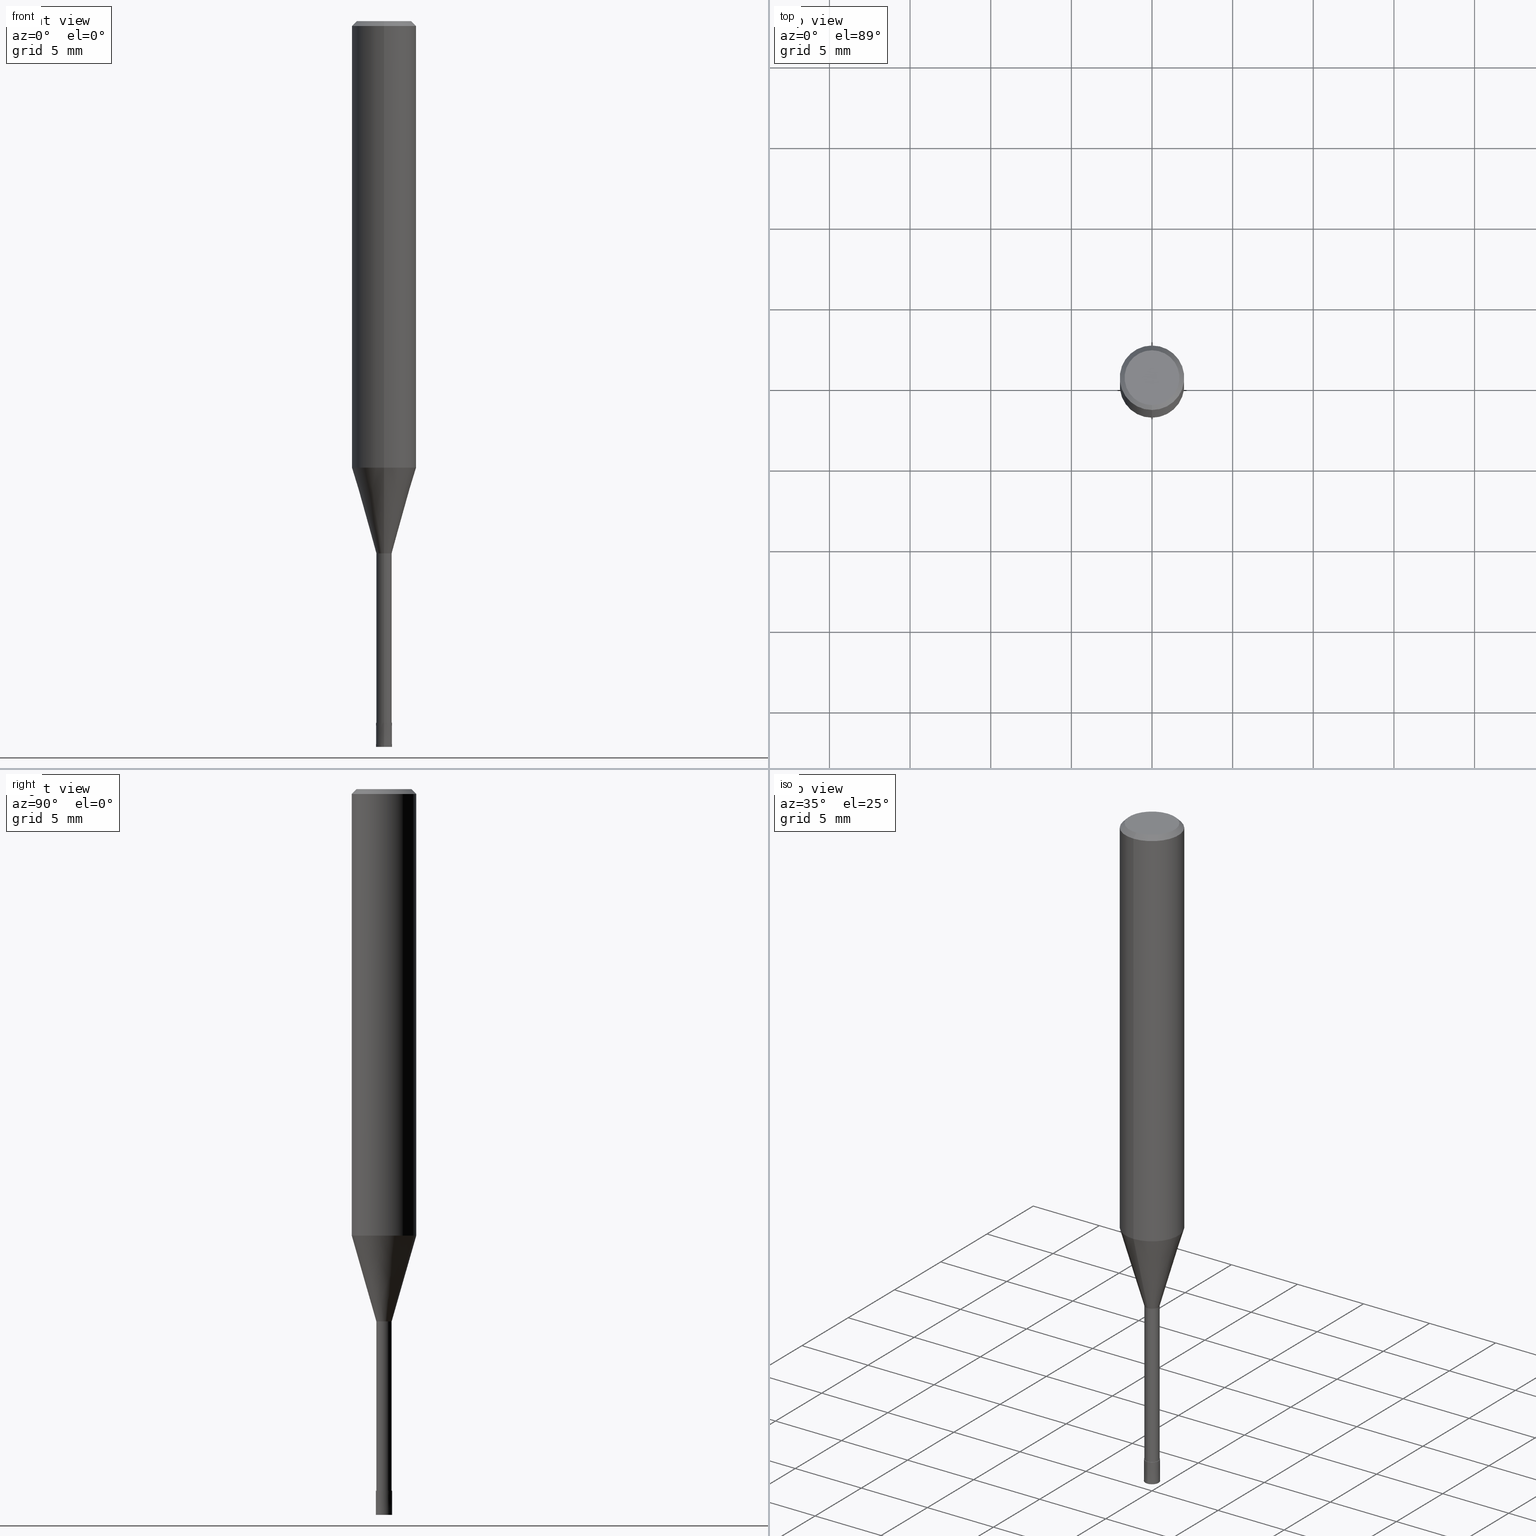
[diagram: canonical four-view strip — front | top / right | iso, engineering-drawing reading convention]
A machine part, canonical four-view strip (front | top / right | iso — engineering-drawing reading convention). The complete STEP part file that produces these views, byte-faithful:
ISO-10303-21;
HEADER;
FILE_DESCRIPTION(('no description'),'unknown implementation level');
FILE_NAME('HLS2010-120-Huellk.stp','  ',('CIMSOURCE GmbH'),('CADClick - KiM GmbH - www.kimweb.de'),'unknown preprocess','ACIS','unknown authorization');
FILE_SCHEMA(('automotive_design'));
ENDSEC;
DATA;
#1=MECHANICAL_DESIGN_GEOMETRIC_PRESENTATION_REPRESENTATION(' ',(#14,#15,#16,#17,#18,#19,#20,#21,#22,#23,#24,#25,#26,#27,#28,#29,#30,#31,#32,#33,#34,#35,#36,#37,#38,#39,#40,#41,#42,#43,#44,#45,#46,#47,#48,#49,#50,#51,#52,#53,#54,#55,#56,#57,#58,#59,#60,#61,#62,#63,#64,#65,#66,#67,#68,#69,#70,#71,#72),#10);
#2=PRODUCT_DEFINITION_CONTEXT('',#73,'design');
#3=APPLICATION_PROTOCOL_DEFINITION('INTERNATIONAL STANDARD','automotive_design',1994,#73);
#4=PRODUCT_CATEGORY_RELATIONSHIP('NONE','NONE',#74,#75);
#5=SHAPE_DEFINITION_REPRESENTATION(#76,#77);
#6=PRODUCT_DEFINITION_CONTEXT('',#78,'design');
#7=APPLICATION_PROTOCOL_DEFINITION('INTERNATIONAL STANDARD','automotive_design',1994,#78);
#8=PRODUCT_CATEGORY_RELATIONSHIP('NONE','NONE',#79,#80);
#9=SHAPE_DEFINITION_REPRESENTATION(#81,#82);
#10= (GEOMETRIC_REPRESENTATION_CONTEXT(3)GLOBAL_UNCERTAINTY_ASSIGNED_CONTEXT((#85))GLOBAL_UNIT_ASSIGNED_CONTEXT((#87,#88,#89))REPRESENTATION_CONTEXT('NONE','WORKSPACE'));
#14=STYLED_ITEM('',(#91),#92);
#15=STYLED_ITEM('',(#93),#94);
#16=STYLED_ITEM('',(#95),#96);
#17=STYLED_ITEM('',(#97),#98);
#18=STYLED_ITEM('',(#99),#100);
#19=STYLED_ITEM('',(#101),#102);
#20=STYLED_ITEM('',(#103),#104);
#21=STYLED_ITEM('',(#105),#106);
#22=STYLED_ITEM('',(#107),#108);
#23=STYLED_ITEM('',(#109),#110);
#24=STYLED_ITEM('',(#111),#112);
#25=STYLED_ITEM('',(#113),#114);
#26=STYLED_ITEM('',(#115),#116);
#27=STYLED_ITEM('',(#117),#118);
#28=STYLED_ITEM('',(#119),#120);
#29=STYLED_ITEM('',(#121),#122);
#30=STYLED_ITEM('',(#123),#124);
#31=STYLED_ITEM('',(#125),#126);
#32=STYLED_ITEM('',(#127),#128);
#33=STYLED_ITEM('',(#129),#130);
#34=STYLED_ITEM('',(#131),#132);
#35=STYLED_ITEM('',(#133),#134);
#36=STYLED_ITEM('',(#135),#136);
#37=STYLED_ITEM('',(#137),#138);
#38=STYLED_ITEM('',(#139),#140);
#39=STYLED_ITEM('',(#141),#142);
#40=STYLED_ITEM('',(#143),#144);
#41=STYLED_ITEM('',(#145),#146);
#42=STYLED_ITEM('',(#147),#148);
#43=STYLED_ITEM('',(#149),#150);
#44=STYLED_ITEM('',(#151),#152);
#45=STYLED_ITEM('',(#153),#154);
#46=STYLED_ITEM('',(#155),#156);
#47=STYLED_ITEM('',(#157),#158);
#48=STYLED_ITEM('',(#159),#160);
#49=STYLED_ITEM('',(#161),#162);
#50=STYLED_ITEM('',(#163),#164);
#51=STYLED_ITEM('',(#165),#166);
#52=STYLED_ITEM('',(#167),#168);
#53=STYLED_ITEM('',(#169),#170);
#54=STYLED_ITEM('',(#171),#172);
#55=STYLED_ITEM('',(#173),#174);
#56=STYLED_ITEM('',(#175),#176);
#57=STYLED_ITEM('',(#177),#178);
#58=STYLED_ITEM('',(#179),#180);
#59=STYLED_ITEM('',(#181),#182);
#60=STYLED_ITEM('',(#183),#184);
#61=STYLED_ITEM('',(#185),#186);
#62=STYLED_ITEM('',(#187),#188);
#63=STYLED_ITEM('',(#189),#190);
#64=STYLED_ITEM('',(#191),#192);
#65=STYLED_ITEM('',(#193),#194);
#66=STYLED_ITEM('',(#195),#196);
#67=STYLED_ITEM('',(#197),#198);
#68=STYLED_ITEM('',(#199),#200);
#69=STYLED_ITEM('',(#201),#202);
#70=STYLED_ITEM('',(#203),#204);
#71=STYLED_ITEM('',(#205),#206);
#72=STYLED_ITEM('',(#207),#208);
#73=APPLICATION_CONTEXT(' ');
#74=PRODUCT_CATEGORY('part','NONE');
#75=PRODUCT_RELATED_PRODUCT_CATEGORY('detail',' ',(#209));
#76=PRODUCT_DEFINITION_SHAPE('NONE','NONE',#210);
#77=ADVANCED_BREP_SHAPE_REPRESENTATION('1',(#94,#211),#10);
#78=APPLICATION_CONTEXT(' ');
#79=PRODUCT_CATEGORY('part','NONE');
#80=PRODUCT_RELATED_PRODUCT_CATEGORY('detail',' ',(#212));
#81=PRODUCT_DEFINITION_SHAPE('NONE','NONE',#213);
#82=ADVANCED_BREP_SHAPE_REPRESENTATION('2',(#102,#214),#10);
#85=UNCERTAINTY_MEASURE_WITH_UNIT(LENGTH_MEASURE(1.0E-006),#87,'','');
#87= (CONVERSION_BASED_UNIT('MILLIMETRE',#217)LENGTH_UNIT()NAMED_UNIT(#220));
#88= (NAMED_UNIT(#222)PLANE_ANGLE_UNIT()SI_UNIT($,.RADIAN.));
#89= (NAMED_UNIT(#222)SOLID_ANGLE_UNIT()SI_UNIT($,.STERADIAN.));
#91=PRESENTATION_STYLE_ASSIGNMENT((#228));
#92=EDGE_CURVE('',#150,#158,#229,.T.);
#93=PRESENTATION_STYLE_ASSIGNMENT((#230));
#94=MANIFOLD_SOLID_BREP('1',#231);
#95=PRESENTATION_STYLE_ASSIGNMENT((#232));
#96=ADVANCED_FACE('',(#233),#234,.T.);
#97=PRESENTATION_STYLE_ASSIGNMENT((#235));
#98=ADVANCED_FACE('',(#236),#237,.T.);
#99=PRESENTATION_STYLE_ASSIGNMENT((#238));
#100=EDGE_CURVE('',#186,#108,#239,.T.);
#101=PRESENTATION_STYLE_ASSIGNMENT((#240));
#102=MANIFOLD_SOLID_BREP('2',#241);
#103=PRESENTATION_STYLE_ASSIGNMENT((#242));
#104=EDGE_CURVE('',#174,#120,#243,.T.);
#105=PRESENTATION_STYLE_ASSIGNMENT((#244));
#106=ADVANCED_FACE('',(#245),#246,.T.);
#107=PRESENTATION_STYLE_ASSIGNMENT((#247));
#108=VERTEX_POINT('',#248);
#109=PRESENTATION_STYLE_ASSIGNMENT((#249));
#110=VERTEX_POINT('',#250);
#111=PRESENTATION_STYLE_ASSIGNMENT((#251));
#112=ADVANCED_FACE('',(#252),#253,.T.);
#113=PRESENTATION_STYLE_ASSIGNMENT((#254));
#114=EDGE_CURVE('',#150,#188,#255,.T.);
#115=PRESENTATION_STYLE_ASSIGNMENT((#256));
#116=EDGE_CURVE('',#202,#182,#257,.T.);
#117=PRESENTATION_STYLE_ASSIGNMENT((#258));
#118=ADVANCED_FACE('',(#259),#260,.T.);
#119=PRESENTATION_STYLE_ASSIGNMENT((#261));
#120=VERTEX_POINT('',#262);
#121=PRESENTATION_STYLE_ASSIGNMENT((#263));
#122=VERTEX_POINT('',#264);
#123=PRESENTATION_STYLE_ASSIGNMENT((#265));
#124=VERTEX_POINT('',#266);
#125=PRESENTATION_STYLE_ASSIGNMENT((#267));
#126=EDGE_CURVE('',#110,#124,#268,.T.);
#127=PRESENTATION_STYLE_ASSIGNMENT((#269));
#128=ADVANCED_FACE('',(#270),#271,.T.);
#129=PRESENTATION_STYLE_ASSIGNMENT((#272));
#130=VERTEX_POINT('',#273);
#131=PRESENTATION_STYLE_ASSIGNMENT((#274));
#132=EDGE_CURVE('',#130,#124,#275,.T.);
#133=PRESENTATION_STYLE_ASSIGNMENT((#276));
#134=ADVANCED_FACE('',(#277),#278,.T.);
#135=PRESENTATION_STYLE_ASSIGNMENT((#279));
#136=ADVANCED_FACE('',(#280),#281,.T.);
#137=PRESENTATION_STYLE_ASSIGNMENT((#282));
#138=ADVANCED_FACE('',(#283),#284,.T.);
#139=PRESENTATION_STYLE_ASSIGNMENT((#285));
#140=ADVANCED_FACE('',(#286),#287,.T.);
#141=PRESENTATION_STYLE_ASSIGNMENT((#288));
#142=ADVANCED_FACE('',(#289),#290,.T.);
#143=PRESENTATION_STYLE_ASSIGNMENT((#291));
#144=VERTEX_POINT('',#292);
#145=PRESENTATION_STYLE_ASSIGNMENT((#293));
#146=VERTEX_POINT('',#294);
#147=PRESENTATION_STYLE_ASSIGNMENT((#295));
#148=EDGE_CURVE('',#146,#122,#296,.T.);
#149=PRESENTATION_STYLE_ASSIGNMENT((#297));
#150=VERTEX_POINT('',#298);
#151=PRESENTATION_STYLE_ASSIGNMENT((#299));
#152=EDGE_CURVE('',#146,#198,#300,.T.);
#153=PRESENTATION_STYLE_ASSIGNMENT((#301));
#154=EDGE_CURVE('',#110,#144,#302,.T.);
#155=PRESENTATION_STYLE_ASSIGNMENT((#303));
#156=EDGE_CURVE('',#188,#122,#304,.T.);
#157=PRESENTATION_STYLE_ASSIGNMENT((#305));
#158=VERTEX_POINT('',#306);
#159=PRESENTATION_STYLE_ASSIGNMENT((#307));
#160=EDGE_CURVE('',#144,#130,#308,.T.);
#161=PRESENTATION_STYLE_ASSIGNMENT((#309));
#162=EDGE_CURVE('',#198,#146,#310,.T.);
#163=PRESENTATION_STYLE_ASSIGNMENT((#311));
#164=ADVANCED_FACE('',(#312),#313,.T.);
#165=PRESENTATION_STYLE_ASSIGNMENT((#314));
#166=EDGE_CURVE('',#182,#202,#315,.T.);
#167=PRESENTATION_STYLE_ASSIGNMENT((#316));
#168=EDGE_CURVE('',#108,#120,#317,.T.);
#169=PRESENTATION_STYLE_ASSIGNMENT((#318));
#170=ADVANCED_FACE('',(#319,#320),#321,.T.);
#171=PRESENTATION_STYLE_ASSIGNMENT((#322));
#172=EDGE_CURVE('',#124,#110,#323,.T.);
#173=PRESENTATION_STYLE_ASSIGNMENT((#324));
#174=VERTEX_POINT('',#325);
#175=PRESENTATION_STYLE_ASSIGNMENT((#326));
#176=ADVANCED_FACE('',(#327),#328,.T.);
#177=PRESENTATION_STYLE_ASSIGNMENT((#329));
#178=ADVANCED_FACE('',(#330),#331,.T.);
#179=PRESENTATION_STYLE_ASSIGNMENT((#332));
#180=EDGE_CURVE('',#122,#188,#333,.T.);
#181=PRESENTATION_STYLE_ASSIGNMENT((#334));
#182=VERTEX_POINT('',#335);
#183=PRESENTATION_STYLE_ASSIGNMENT((#336));
#184=EDGE_CURVE('',#130,#144,#337,.T.);
#185=PRESENTATION_STYLE_ASSIGNMENT((#338));
#186=VERTEX_POINT('',#339);
#187=PRESENTATION_STYLE_ASSIGNMENT((#340));
#188=VERTEX_POINT('',#341);
#189=PRESENTATION_STYLE_ASSIGNMENT((#342));
#190=EDGE_CURVE('',#188,#198,#343,.T.);
#191=PRESENTATION_STYLE_ASSIGNMENT((#344));
#192=EDGE_CURVE('',#108,#186,#345,.T.);
#193=PRESENTATION_STYLE_ASSIGNMENT((#346));
#194=EDGE_CURVE('',#120,#174,#347,.T.);
#195=PRESENTATION_STYLE_ASSIGNMENT((#348));
#196=EDGE_CURVE('',#186,#182,#349,.T.);
#197=PRESENTATION_STYLE_ASSIGNMENT((#350));
#198=VERTEX_POINT('',#351);
#199=PRESENTATION_STYLE_ASSIGNMENT((#352));
#200=EDGE_CURVE('',#174,#186,#353,.T.);
#201=PRESENTATION_STYLE_ASSIGNMENT((#354));
#202=VERTEX_POINT('',#355);
#203=PRESENTATION_STYLE_ASSIGNMENT((#356));
#204=EDGE_CURVE('',#122,#158,#357,.T.);
#205=PRESENTATION_STYLE_ASSIGNMENT((#358));
#206=EDGE_CURVE('',#158,#150,#359,.T.);
#207=PRESENTATION_STYLE_ASSIGNMENT((#360));
#208=EDGE_CURVE('',#202,#108,#361,.T.);
#209=PRODUCT('1','1','PART-1-DESC',(#362));
#210=PRODUCT_DEFINITION('NONE','NONE',#363,#2);
#211=AXIS2_PLACEMENT_3D('',#364,#365,#366);
#212=PRODUCT('2','2','PART-2-DESC',(#367));
#213=PRODUCT_DEFINITION('NONE','NONE',#368,#6);
#214=AXIS2_PLACEMENT_3D('',#369,#370,#371);
#217=LENGTH_MEASURE_WITH_UNIT(LENGTH_MEASURE(1.0),#372);
#220=DIMENSIONAL_EXPONENTS(1.0,0.0,0.0,0.0,0.0,0.0,0.0);
#222=DIMENSIONAL_EXPONENTS(0.0,0.0,0.0,0.0,0.0,0.0,0.0);
#228=CURVE_STYLE('',#373,POSITIVE_LENGTH_MEASURE(1.0E-006),#374);
#229=CIRCLE('',#375,1.7);
#230=SURFACE_STYLE_USAGE(.BOTH.,#376);
#231=CLOSED_SHELL('',(#178,#134,#136,#138,#170,#176,#164,#142,#118,#140,#106));
#232=SURFACE_STYLE_USAGE(.BOTH.,#377);
#233=FACE_OUTER_BOUND('',#378,.T.);
#234=CONICAL_SURFACE('',#379,0.49995,6.66666665678939E-005);
#235=SURFACE_STYLE_USAGE(.BOTH.,#380);
#236=FACE_OUTER_BOUND('',#381,.T.);
#237=PLANE('',#382);
#238=CURVE_STYLE('',#383,POSITIVE_LENGTH_MEASURE(1.0E-006),#384);
#239=CIRCLE('',#385,0.47495);
#240=SURFACE_STYLE_USAGE(.BOTH.,#386);
#241=CLOSED_SHELL('',(#96,#98,#112,#128));
#242=CURVE_STYLE('',#387,POSITIVE_LENGTH_MEASURE(1.0E-006),#388);
#243=CIRCLE('',#389,1.99995);
#244=SURFACE_STYLE_USAGE(.BOTH.,#390);
#245=FACE_OUTER_BOUND('',#391,.T.);
#246=PLANE('',#392);
#247=POINT_STYLE(' ',#393,POSITIVE_LENGTH_MEASURE(1.0E-006),#394);
#248=CARTESIAN_POINT('',(5.81626787747938E-017,-0.47495,-33.0));
#249=POINT_STYLE(' ',#395,POSITIVE_LENGTH_MEASURE(1.0E-006),#396);
#250=CARTESIAN_POINT('',(0.0,0.4999,-43.5));
#251=SURFACE_STYLE_USAGE(.BOTH.,#397);
#252=FACE_OUTER_BOUND('',#398,.T.);
#253=CONICAL_SURFACE('',#399,0.49995,6.66666665678939E-005);
#254=CURVE_STYLE('',#400,POSITIVE_LENGTH_MEASURE(1.0E-006),#401);
#255=LINE('',#402,#403);
#256=CURVE_STYLE('',#404,POSITIVE_LENGTH_MEASURE(1.0E-006),#405);
#257=CIRCLE('',#406,0.47495);
#258=SURFACE_STYLE_USAGE(.BOTH.,#407);
#259=FACE_OUTER_BOUND('',#408,.T.);
#260=CONICAL_SURFACE('',#409,1.23745,0.279267977304115);
#261=POINT_STYLE(' ',#410,POSITIVE_LENGTH_MEASURE(1.0E-006),#411);
#262=CARTESIAN_POINT('',(2.44915147732706E-016,-1.99995,-27.682));
#263=POINT_STYLE(' ',#412,POSITIVE_LENGTH_MEASURE(1.0E-006),#413);
#264=CARTESIAN_POINT('',(2.44921270764475E-016,-2.0,-0.300000000000001));
#265=POINT_STYLE(' ',#414,POSITIVE_LENGTH_MEASURE(1.0E-006),#415);
#266=CARTESIAN_POINT('',(6.12180716275806E-017,-0.4999,-43.5));
#267=CURVE_STYLE('',#416,POSITIVE_LENGTH_MEASURE(1.0E-006),#417);
#268=CIRCLE('',#418,0.4999);
#269=SURFACE_STYLE_USAGE(.BOTH.,#419);
#270=FACE_OUTER_BOUND('',#420,.T.);
#271=PLANE('',#421);
#272=POINT_STYLE(' ',#422,POSITIVE_LENGTH_MEASURE(1.0E-006),#423);
#273=CARTESIAN_POINT('',(6.12303176911189E-017,-0.5,-45.0));
#274=CURVE_STYLE('',#424,POSITIVE_LENGTH_MEASURE(1.0E-006),#425);
#275=LINE('',#426,#427);
#276=SURFACE_STYLE_USAGE(.BOTH.,#428);
#277=FACE_OUTER_BOUND('',#429,.T.);
#278=CONICAL_SURFACE('',#430,1.23745,0.279267977304115);
#279=SURFACE_STYLE_USAGE(.BOTH.,#431);
#280=FACE_OUTER_BOUND('',#432,.T.);
#281=CYLINDRICAL_SURFACE('',#433,2.0);
#282=SURFACE_STYLE_USAGE(.BOTH.,#434);
#283=FACE_OUTER_BOUND('',#435,.T.);
#284=CONICAL_SURFACE('',#436,1.85,0.785398163397447);
#285=SURFACE_STYLE_USAGE(.BOTH.,#437);
#286=FACE_OUTER_BOUND('',#438,.T.);
#287=CYLINDRICAL_SURFACE('',#439,0.47495);
#288=SURFACE_STYLE_USAGE(.BOTH.,#440);
#289=FACE_OUTER_BOUND('',#441,.T.);
#290=CYLINDRICAL_SURFACE('',#442,2.0);
#291=POINT_STYLE(' ',#443,POSITIVE_LENGTH_MEASURE(1.0E-006),#444);
#292=CARTESIAN_POINT('',(0.0,0.5,-45.0));
#293=POINT_STYLE(' ',#445,POSITIVE_LENGTH_MEASURE(1.0E-006),#446);
#294=CARTESIAN_POINT('',(2.44921270764475E-016,-2.0,-27.682));
#295=CURVE_STYLE('',#447,POSITIVE_LENGTH_MEASURE(1.0E-006),#448);
#296=LINE('',#449,#450);
#297=POINT_STYLE(' ',#451,POSITIVE_LENGTH_MEASURE(1.0E-006),#452);
#298=CARTESIAN_POINT('',(0.0,1.7,0.0));
#299=CURVE_STYLE('',#453,POSITIVE_LENGTH_MEASURE(1.0E-006),#454);
#300=CIRCLE('',#455,2.0);
#301=CURVE_STYLE('',#456,POSITIVE_LENGTH_MEASURE(1.0E-006),#457);
#302=LINE('',#458,#459);
#303=CURVE_STYLE('',#460,POSITIVE_LENGTH_MEASURE(1.0E-006),#461);
#304=CIRCLE('',#462,2.0);
#305=POINT_STYLE(' ',#463,POSITIVE_LENGTH_MEASURE(1.0E-006),#464);
#306=CARTESIAN_POINT('',(2.08183080149804E-016,-1.7,0.0));
#307=CURVE_STYLE('',#465,POSITIVE_LENGTH_MEASURE(1.0E-006),#466);
#308=CIRCLE('',#467,0.5);
#309=CURVE_STYLE('',#468,POSITIVE_LENGTH_MEASURE(1.0E-006),#469);
#310=CIRCLE('',#470,2.0);
#311=SURFACE_STYLE_USAGE(.BOTH.,#471);
#312=FACE_OUTER_BOUND('',#472,.T.);
#313=CONICAL_SURFACE('',#473,1.85,0.785398163397447);
#314=CURVE_STYLE('',#474,POSITIVE_LENGTH_MEASURE(1.0E-006),#475);
#315=CIRCLE('',#476,0.47495);
#316=CURVE_STYLE('',#477,POSITIVE_LENGTH_MEASURE(1.0E-006),#478);
#317=LINE('',#479,#480);
#318=SURFACE_STYLE_USAGE(.BOTH.,#481);
#319=FACE_OUTER_BOUND('',#482,.T.);
#320=FACE_BOUND('',#483,.T.);
#321=PLANE('',#484);
#322=CURVE_STYLE('',#485,POSITIVE_LENGTH_MEASURE(1.0E-006),#486);
#323=CIRCLE('',#487,0.4999);
#324=POINT_STYLE(' ',#488,POSITIVE_LENGTH_MEASURE(1.0E-006),#489);
#325=CARTESIAN_POINT('',(0.0,1.99995,-27.682));
#326=SURFACE_STYLE_USAGE(.BOTH.,#490);
#327=FACE_OUTER_BOUND('',#491,.T.);
#328=PLANE('',#492);
#329=SURFACE_STYLE_USAGE(.BOTH.,#493);
#330=FACE_OUTER_BOUND('',#494,.T.);
#331=CYLINDRICAL_SURFACE('',#495,0.47495);
#332=CURVE_STYLE('',#496,POSITIVE_LENGTH_MEASURE(1.0E-006),#497);
#333=CIRCLE('',#498,2.0);
#334=POINT_STYLE(' ',#499,POSITIVE_LENGTH_MEASURE(1.0E-006),#500);
#335=CARTESIAN_POINT('',(0.0,0.47495,-43.5));
#336=CURVE_STYLE('',#501,POSITIVE_LENGTH_MEASURE(1.0E-006),#502);
#337=CIRCLE('',#503,0.5);
#338=POINT_STYLE(' ',#504,POSITIVE_LENGTH_MEASURE(1.0E-006),#505);
#339=CARTESIAN_POINT('',(0.0,0.47495,-33.0));
#340=POINT_STYLE(' ',#506,POSITIVE_LENGTH_MEASURE(1.0E-006),#507);
#341=CARTESIAN_POINT('',(0.0,2.0,-0.300000000000001));
#342=CURVE_STYLE('',#508,POSITIVE_LENGTH_MEASURE(1.0E-006),#509);
#343=LINE('',#510,#511);
#344=CURVE_STYLE('',#512,POSITIVE_LENGTH_MEASURE(1.0E-006),#513);
#345=CIRCLE('',#514,0.47495);
#346=CURVE_STYLE('',#515,POSITIVE_LENGTH_MEASURE(1.0E-006),#516);
#347=CIRCLE('',#517,1.99995);
#348=CURVE_STYLE('',#518,POSITIVE_LENGTH_MEASURE(1.0E-006),#519);
#349=LINE('',#520,#521);
#350=POINT_STYLE(' ',#522,POSITIVE_LENGTH_MEASURE(1.0E-006),#523);
#351=CARTESIAN_POINT('',(0.0,2.0,-27.682));
#352=CURVE_STYLE('',#524,POSITIVE_LENGTH_MEASURE(1.0E-006),#525);
#353=LINE('',#526,#527);
#354=POINT_STYLE(' ',#528,POSITIVE_LENGTH_MEASURE(1.0E-006),#529);
#355=CARTESIAN_POINT('',(5.81626787747938E-017,-0.47495,-43.5));
#356=CURVE_STYLE('',#530,POSITIVE_LENGTH_MEASURE(1.0E-006),#531);
#357=LINE('',#532,#533);
#358=CURVE_STYLE('',#534,POSITIVE_LENGTH_MEASURE(1.0E-006),#535);
#359=CIRCLE('',#536,1.7);
#360=CURVE_STYLE('',#537,POSITIVE_LENGTH_MEASURE(1.0E-006),#538);
#361=LINE('',#539,#540);
#362=PRODUCT_CONTEXT('',#73,'mechanical');
#363=PRODUCT_DEFINITION_FORMATION_WITH_SPECIFIED_SOURCE(' ','NONE',#209,.NOT_KNOWN.);
#364=CARTESIAN_POINT('',(0.0,0.0,0.0));
#365=DIRECTION('',(0.0,0.0,1.0));
#366=DIRECTION('',(1.0,0.0,0.0));
#367=PRODUCT_CONTEXT('',#78,'mechanical');
#368=PRODUCT_DEFINITION_FORMATION_WITH_SPECIFIED_SOURCE(' ','NONE',#212,.NOT_KNOWN.);
#369=CARTESIAN_POINT('',(0.0,0.0,0.0));
#370=DIRECTION('',(0.0,0.0,1.0));
#371=DIRECTION('',(1.0,0.0,0.0));
#372= (NAMED_UNIT(#220)LENGTH_UNIT()SI_UNIT(.MILLI.,.METRE.));
#373=DRAUGHTING_PRE_DEFINED_CURVE_FONT('continuous');
#374=COLOUR_RGB('',0.498039215803146,0.498039215803146,0.498039215803146);
#375=AXIS2_PLACEMENT_3D('',#542,#543,#544);
#376=SURFACE_SIDE_STYLE('',(#545));
#377=SURFACE_SIDE_STYLE('',(#546));
#378=EDGE_LOOP('',(#547,#548,#549,#550));
#379=AXIS2_PLACEMENT_3D('',#551,#552,#553);
#380=SURFACE_SIDE_STYLE('',(#554));
#381=EDGE_LOOP('',(#555,#556));
#382=AXIS2_PLACEMENT_3D('',#557,#558,#559);
#383=DRAUGHTING_PRE_DEFINED_CURVE_FONT('continuous');
#384=COLOUR_RGB('',0.498039215803146,0.498039215803146,0.498039215803146);
#385=AXIS2_PLACEMENT_3D('',#560,#561,#562);
#386=SURFACE_SIDE_STYLE('',(#563));
#387=DRAUGHTING_PRE_DEFINED_CURVE_FONT('continuous');
#388=COLOUR_RGB('',0.498039215803146,0.498039215803146,0.498039215803146);
#389=AXIS2_PLACEMENT_3D('',#564,#565,#566);
#390=SURFACE_SIDE_STYLE('',(#567));
#391=EDGE_LOOP('',(#568,#569));
#392=AXIS2_PLACEMENT_3D('',#570,#571,#572);
#393=PRE_DEFINED_MARKER('');
#394=COLOUR_RGB('',0.498039215803146,0.498039215803146,0.498039215803146);
#395=PRE_DEFINED_MARKER('');
#396=COLOUR_RGB('',0.800000011920929,0.800000011920929,0.800000011920929);
#397=SURFACE_SIDE_STYLE('',(#573));
#398=EDGE_LOOP('',(#574,#575,#576,#577));
#399=AXIS2_PLACEMENT_3D('',#578,#579,#580);
#400=DRAUGHTING_PRE_DEFINED_CURVE_FONT('continuous');
#401=COLOUR_RGB('',0.498039215803146,0.498039215803146,0.498039215803146);
#402=CARTESIAN_POINT('',(-2.2655217545714E-016,1.85,-0.150000000000002));
#403=VECTOR('',#581,1.0);
#404=DRAUGHTING_PRE_DEFINED_CURVE_FONT('continuous');
#405=COLOUR_RGB('',0.498039215803146,0.498039215803146,0.498039215803146);
#406=AXIS2_PLACEMENT_3D('',#582,#583,#584);
#407=SURFACE_SIDE_STYLE('',(#585));
#408=EDGE_LOOP('',(#586,#587,#588,#589));
#409=AXIS2_PLACEMENT_3D('',#590,#591,#592);
#410=PRE_DEFINED_MARKER('');
#411=COLOUR_RGB('',0.498039215803146,0.498039215803146,0.498039215803146);
#412=PRE_DEFINED_MARKER('');
#413=COLOUR_RGB('',0.498039215803146,0.498039215803146,0.498039215803146);
#414=PRE_DEFINED_MARKER('');
#415=COLOUR_RGB('',0.800000011920929,0.800000011920929,0.800000011920929);
#416=DRAUGHTING_PRE_DEFINED_CURVE_FONT('continuous');
#417=COLOUR_RGB('',0.800000011920929,0.800000011920929,0.800000011920929);
#418=AXIS2_PLACEMENT_3D('',#593,#594,#595);
#419=SURFACE_SIDE_STYLE('',(#596));
#420=EDGE_LOOP('',(#597,#598));
#421=AXIS2_PLACEMENT_3D('',#599,#600,#601);
#422=PRE_DEFINED_MARKER('');
#423=COLOUR_RGB('',0.800000011920929,0.800000011920929,0.800000011920929);
#424=DRAUGHTING_PRE_DEFINED_CURVE_FONT('continuous');
#425=COLOUR_RGB('',0.800000011920929,0.800000011920929,0.800000011920929);
#426=CARTESIAN_POINT('',(6.12241946593497E-017,-0.49995,-44.25));
#427=VECTOR('',#602,1.0);
#428=SURFACE_SIDE_STYLE('',(#603));
#429=EDGE_LOOP('',(#604,#605,#606,#607));
#430=AXIS2_PLACEMENT_3D('',#608,#609,#610);
#431=SURFACE_SIDE_STYLE('',(#611));
#432=EDGE_LOOP('',(#612,#613,#614,#615));
#433=AXIS2_PLACEMENT_3D('',#616,#617,#618);
#434=SURFACE_SIDE_STYLE('',(#619));
#435=EDGE_LOOP('',(#620,#621,#622,#623));
#436=AXIS2_PLACEMENT_3D('',#624,#625,#626);
#437=SURFACE_SIDE_STYLE('',(#627));
#438=EDGE_LOOP('',(#628,#629,#630,#631));
#439=AXIS2_PLACEMENT_3D('',#632,#633,#634);
#440=SURFACE_SIDE_STYLE('',(#635));
#441=EDGE_LOOP('',(#636,#637,#638,#639));
#442=AXIS2_PLACEMENT_3D('',#640,#641,#642);
#443=PRE_DEFINED_MARKER('');
#444=COLOUR_RGB('',0.800000011920929,0.800000011920929,0.800000011920929);
#445=PRE_DEFINED_MARKER('');
#446=COLOUR_RGB('',0.498039215803146,0.498039215803146,0.498039215803146);
#447=DRAUGHTING_PRE_DEFINED_CURVE_FONT('continuous');
#448=COLOUR_RGB('',0.498039215803146,0.498039215803146,0.498039215803146);
#449=CARTESIAN_POINT('',(2.44921270764475E-016,-2.0,-13.991));
#450=VECTOR('',#643,1.0);
#451=PRE_DEFINED_MARKER('');
#452=COLOUR_RGB('',0.498039215803146,0.498039215803146,0.498039215803146);
#453=DRAUGHTING_PRE_DEFINED_CURVE_FONT('continuous');
#454=COLOUR_RGB('',0.498039215803146,0.498039215803146,0.498039215803146);
#455=AXIS2_PLACEMENT_3D('',#644,#645,#646);
#456=DRAUGHTING_PRE_DEFINED_CURVE_FONT('continuous');
#457=COLOUR_RGB('',0.800000011920929,0.800000011920929,0.800000011920929);
#458=CARTESIAN_POINT('',(-6.12241946593497E-017,0.49995,-44.25));
#459=VECTOR('',#647,1.0);
#460=DRAUGHTING_PRE_DEFINED_CURVE_FONT('continuous');
#461=COLOUR_RGB('',0.498039215803146,0.498039215803146,0.498039215803146);
#462=AXIS2_PLACEMENT_3D('',#648,#649,#650);
#463=PRE_DEFINED_MARKER('');
#464=COLOUR_RGB('',0.498039215803146,0.498039215803146,0.498039215803146);
#465=DRAUGHTING_PRE_DEFINED_CURVE_FONT('continuous');
#466=COLOUR_RGB('',0.800000011920929,0.800000011920929,0.800000011920929);
#467=AXIS2_PLACEMENT_3D('',#651,#652,#653);
#468=DRAUGHTING_PRE_DEFINED_CURVE_FONT('continuous');
#469=COLOUR_RGB('',0.498039215803146,0.498039215803146,0.498039215803146);
#470=AXIS2_PLACEMENT_3D('',#654,#655,#656);
#471=SURFACE_SIDE_STYLE('',(#657));
#472=EDGE_LOOP('',(#658,#659,#660,#661));
#473=AXIS2_PLACEMENT_3D('',#662,#663,#664);
#474=DRAUGHTING_PRE_DEFINED_CURVE_FONT('continuous');
#475=COLOUR_RGB('',0.498039215803146,0.498039215803146,0.498039215803146);
#476=AXIS2_PLACEMENT_3D('',#665,#666,#667);
#477=DRAUGHTING_PRE_DEFINED_CURVE_FONT('continuous');
#478=COLOUR_RGB('',0.498039215803146,0.498039215803146,0.498039215803146);
#479=CARTESIAN_POINT('',(1.5153891325375E-016,-1.23745,-30.341));
#480=VECTOR('',#668,1.0);
#481=SURFACE_SIDE_STYLE('',(#669));
#482=EDGE_LOOP('',(#670,#671));
#483=EDGE_LOOP('',(#672,#673));
#484=AXIS2_PLACEMENT_3D('',#674,#675,#676);
#485=DRAUGHTING_PRE_DEFINED_CURVE_FONT('continuous');
#486=COLOUR_RGB('',0.800000011920929,0.800000011920929,0.800000011920929);
#487=AXIS2_PLACEMENT_3D('',#677,#678,#679);
#488=PRE_DEFINED_MARKER('');
#489=COLOUR_RGB('',0.498039215803146,0.498039215803146,0.498039215803146);
#490=SURFACE_SIDE_STYLE('',(#680));
#491=EDGE_LOOP('',(#681,#682));
#492=AXIS2_PLACEMENT_3D('',#683,#684,#685);
#493=SURFACE_SIDE_STYLE('',(#686));
#494=EDGE_LOOP('',(#687,#688,#689,#690));
#495=AXIS2_PLACEMENT_3D('',#691,#692,#693);
#496=DRAUGHTING_PRE_DEFINED_CURVE_FONT('continuous');
#497=COLOUR_RGB('',0.498039215803146,0.498039215803146,0.498039215803146);
#498=AXIS2_PLACEMENT_3D('',#694,#695,#696);
#499=PRE_DEFINED_MARKER('');
#500=COLOUR_RGB('',0.498039215803146,0.498039215803146,0.498039215803146);
#501=DRAUGHTING_PRE_DEFINED_CURVE_FONT('continuous');
#502=COLOUR_RGB('',0.800000011920929,0.800000011920929,0.800000011920929);
#503=AXIS2_PLACEMENT_3D('',#697,#698,#699);
#504=PRE_DEFINED_MARKER('');
#505=COLOUR_RGB('',0.498039215803146,0.498039215803146,0.498039215803146);
#506=PRE_DEFINED_MARKER('');
#507=COLOUR_RGB('',0.498039215803146,0.498039215803146,0.498039215803146);
#508=DRAUGHTING_PRE_DEFINED_CURVE_FONT('continuous');
#509=COLOUR_RGB('',0.498039215803146,0.498039215803146,0.498039215803146);
#510=CARTESIAN_POINT('',(-2.44921270764475E-016,2.0,-13.991));
#511=VECTOR('',#700,1.0);
#512=DRAUGHTING_PRE_DEFINED_CURVE_FONT('continuous');
#513=COLOUR_RGB('',0.498039215803146,0.498039215803146,0.498039215803146);
#514=AXIS2_PLACEMENT_3D('',#701,#702,#703);
#515=DRAUGHTING_PRE_DEFINED_CURVE_FONT('continuous');
#516=COLOUR_RGB('',0.498039215803146,0.498039215803146,0.498039215803146);
#517=AXIS2_PLACEMENT_3D('',#704,#705,#706);
#518=DRAUGHTING_PRE_DEFINED_CURVE_FONT('continuous');
#519=COLOUR_RGB('',0.498039215803146,0.498039215803146,0.498039215803146);
#520=CARTESIAN_POINT('',(-5.81626787747938E-017,0.47495,-38.25));
#521=VECTOR('',#707,1.0);
#522=PRE_DEFINED_MARKER('');
#523=COLOUR_RGB('',0.498039215803146,0.498039215803146,0.498039215803146);
#524=DRAUGHTING_PRE_DEFINED_CURVE_FONT('continuous');
#525=COLOUR_RGB('',0.498039215803146,0.498039215803146,0.498039215803146);
#526=CARTESIAN_POINT('',(-1.5153891325375E-016,1.23745,-30.341));
#527=VECTOR('',#708,1.0);
#528=PRE_DEFINED_MARKER('');
#529=COLOUR_RGB('',0.498039215803146,0.498039215803146,0.498039215803146);
#530=DRAUGHTING_PRE_DEFINED_CURVE_FONT('continuous');
#531=COLOUR_RGB('',0.498039215803146,0.498039215803146,0.498039215803146);
#532=CARTESIAN_POINT('',(2.2655217545714E-016,-1.85,-0.150000000000002));
#533=VECTOR('',#709,1.0);
#534=DRAUGHTING_PRE_DEFINED_CURVE_FONT('continuous');
#535=COLOUR_RGB('',0.498039215803146,0.498039215803146,0.498039215803146);
#536=AXIS2_PLACEMENT_3D('',#710,#711,#712);
#537=DRAUGHTING_PRE_DEFINED_CURVE_FONT('continuous');
#538=COLOUR_RGB('',0.498039215803146,0.498039215803146,0.498039215803146);
#539=CARTESIAN_POINT('',(5.81626787747938E-017,-0.47495,-38.25));
#540=VECTOR('',#713,1.0);
#542=CARTESIAN_POINT('',(0.0,0.0,0.0));
#543=DIRECTION('',(0.0,0.0,-1.0));
#544=DIRECTION('',(0.0,1.0,0.0));
#545=SURFACE_STYLE_FILL_AREA(#714);
#546=SURFACE_STYLE_FILL_AREA(#715);
#547=ORIENTED_EDGE('',*,*,#154,.F.);
#548=ORIENTED_EDGE('',*,*,#126,.T.);
#549=ORIENTED_EDGE('',*,*,#132,.F.);
#550=ORIENTED_EDGE('',*,*,#160,.F.);
#551=CARTESIAN_POINT('',(0.0,0.0,-44.25));
#552=DIRECTION('',(0.0,-0.0,-1.0));
#553=DIRECTION('',(0.0,1.0,0.0));
#554=SURFACE_STYLE_FILL_AREA(#716);
#555=ORIENTED_EDGE('',*,*,#126,.F.);
#556=ORIENTED_EDGE('',*,*,#172,.F.);
#557=CARTESIAN_POINT('',(0.0,0.24995,-43.5));
#558=DIRECTION('',(-0.0,0.0,1.0));
#559=DIRECTION('',(0.0,-1.0,0.0));
#560=CARTESIAN_POINT('',(0.0,0.0,-33.0));
#561=DIRECTION('',(0.0,0.0,-1.0));
#562=DIRECTION('',(0.0,1.0,0.0));
#563=SURFACE_STYLE_FILL_AREA(#717);
#564=CARTESIAN_POINT('',(0.0,0.0,-27.682));
#565=DIRECTION('',(0.0,0.0,-1.0));
#566=DIRECTION('',(0.0,1.0,0.0));
#567=SURFACE_STYLE_FILL_AREA(#718);
#568=ORIENTED_EDGE('',*,*,#166,.T.);
#569=ORIENTED_EDGE('',*,*,#116,.T.);
#570=CARTESIAN_POINT('',(0.0,0.237475,-43.5));
#571=DIRECTION('',(0.0,0.0,-1.0));
#572=DIRECTION('',(0.0,1.0,0.0));
#573=SURFACE_STYLE_FILL_AREA(#719);
#574=ORIENTED_EDGE('',*,*,#154,.T.);
#575=ORIENTED_EDGE('',*,*,#184,.F.);
#576=ORIENTED_EDGE('',*,*,#132,.T.);
#577=ORIENTED_EDGE('',*,*,#172,.T.);
#578=CARTESIAN_POINT('',(0.0,0.0,-44.25));
#579=DIRECTION('',(0.0,-0.0,-1.0));
#580=DIRECTION('',(0.0,1.0,0.0));
#581=DIRECTION('',(-8.65927457071934E-017,0.707106781186546,-0.707106781186549));
#582=CARTESIAN_POINT('',(0.0,0.0,-43.5));
#583=DIRECTION('',(0.0,0.0,-1.0));
#584=DIRECTION('',(0.0,1.0,0.0));
#585=SURFACE_STYLE_FILL_AREA(#720);
#586=ORIENTED_EDGE('',*,*,#200,.T.);
#587=ORIENTED_EDGE('',*,*,#192,.F.);
#588=ORIENTED_EDGE('',*,*,#168,.T.);
#589=ORIENTED_EDGE('',*,*,#194,.T.);
#590=CARTESIAN_POINT('',(0.0,0.0,-30.341));
#591=DIRECTION('',(-0.0,-0.0,1.0));
#592=DIRECTION('',(0.0,1.0,0.0));
#593=CARTESIAN_POINT('',(0.0,0.0,-43.5));
#594=DIRECTION('',(0.0,0.0,-1.0));
#595=DIRECTION('',(0.0,1.0,0.0));
#596=SURFACE_STYLE_FILL_AREA(#721);
#597=ORIENTED_EDGE('',*,*,#160,.T.);
#598=ORIENTED_EDGE('',*,*,#184,.T.);
#599=CARTESIAN_POINT('',(0.0,0.2475,-45.0));
#600=DIRECTION('',(0.0,0.0,-1.0));
#601=DIRECTION('',(0.0,1.0,0.0));
#602=DIRECTION('',(-8.16404234067263E-021,6.66666665185112E-005,0.999999997777778));
#603=SURFACE_STYLE_FILL_AREA(#722);
#604=ORIENTED_EDGE('',*,*,#200,.F.);
#605=ORIENTED_EDGE('',*,*,#104,.T.);
#606=ORIENTED_EDGE('',*,*,#168,.F.);
#607=ORIENTED_EDGE('',*,*,#100,.F.);
#608=CARTESIAN_POINT('',(0.0,0.0,-30.341));
#609=DIRECTION('',(-0.0,-0.0,1.0));
#610=DIRECTION('',(0.0,1.0,0.0));
#611=SURFACE_STYLE_FILL_AREA(#723);
#612=ORIENTED_EDGE('',*,*,#190,.F.);
#613=ORIENTED_EDGE('',*,*,#156,.T.);
#614=ORIENTED_EDGE('',*,*,#148,.F.);
#615=ORIENTED_EDGE('',*,*,#162,.F.);
#616=CARTESIAN_POINT('',(0.0,0.0,-13.991));
#617=DIRECTION('',(-0.0,-0.0,1.0));
#618=DIRECTION('',(0.0,1.0,0.0));
#619=SURFACE_STYLE_FILL_AREA(#724);
#620=ORIENTED_EDGE('',*,*,#114,.F.);
#621=ORIENTED_EDGE('',*,*,#92,.T.);
#622=ORIENTED_EDGE('',*,*,#204,.F.);
#623=ORIENTED_EDGE('',*,*,#156,.F.);
#624=CARTESIAN_POINT('',(0.0,0.0,-0.150000000000002));
#625=DIRECTION('',(0.0,-0.0,-1.0));
#626=DIRECTION('',(0.0,1.0,0.0));
#627=SURFACE_STYLE_FILL_AREA(#725);
#628=ORIENTED_EDGE('',*,*,#196,.T.);
#629=ORIENTED_EDGE('',*,*,#116,.F.);
#630=ORIENTED_EDGE('',*,*,#208,.T.);
#631=ORIENTED_EDGE('',*,*,#192,.T.);
#632=CARTESIAN_POINT('',(0.0,0.0,-38.25));
#633=DIRECTION('',(-0.0,-0.0,1.0));
#634=DIRECTION('',(0.0,1.0,0.0));
#635=SURFACE_STYLE_FILL_AREA(#726);
#636=ORIENTED_EDGE('',*,*,#190,.T.);
#637=ORIENTED_EDGE('',*,*,#152,.F.);
#638=ORIENTED_EDGE('',*,*,#148,.T.);
#639=ORIENTED_EDGE('',*,*,#180,.T.);
#640=CARTESIAN_POINT('',(0.0,0.0,-13.991));
#641=DIRECTION('',(-0.0,-0.0,1.0));
#642=DIRECTION('',(0.0,1.0,0.0));
#643=DIRECTION('',(-0.0,-0.0,1.0));
#644=CARTESIAN_POINT('',(0.0,0.0,-27.682));
#645=DIRECTION('',(0.0,0.0,-1.0));
#646=DIRECTION('',(0.0,1.0,0.0));
#647=DIRECTION('',(-8.16404234067263E-021,6.66666665185112E-005,-0.999999997777778));
#648=CARTESIAN_POINT('',(0.0,0.0,-0.300000000000001));
#649=DIRECTION('',(0.0,0.0,-1.0));
#650=DIRECTION('',(0.0,1.0,0.0));
#651=CARTESIAN_POINT('',(0.0,0.0,-45.0));
#652=DIRECTION('',(0.0,0.0,-1.0));
#653=DIRECTION('',(0.0,1.0,0.0));
#654=CARTESIAN_POINT('',(0.0,0.0,-27.682));
#655=DIRECTION('',(0.0,0.0,-1.0));
#656=DIRECTION('',(0.0,1.0,0.0));
#657=SURFACE_STYLE_FILL_AREA(#727);
#658=ORIENTED_EDGE('',*,*,#114,.T.);
#659=ORIENTED_EDGE('',*,*,#180,.F.);
#660=ORIENTED_EDGE('',*,*,#204,.T.);
#661=ORIENTED_EDGE('',*,*,#206,.T.);
#662=CARTESIAN_POINT('',(0.0,0.0,-0.150000000000002));
#663=DIRECTION('',(0.0,-0.0,-1.0));
#664=DIRECTION('',(0.0,1.0,0.0));
#665=CARTESIAN_POINT('',(0.0,0.0,-43.5));
#666=DIRECTION('',(0.0,0.0,-1.0));
#667=DIRECTION('',(0.0,1.0,0.0));
#668=DIRECTION('',(3.37565264353533E-017,-0.275652060190515,0.961257479405349));
#669=SURFACE_STYLE_FILL_AREA(#728);
#670=ORIENTED_EDGE('',*,*,#162,.T.);
#671=ORIENTED_EDGE('',*,*,#152,.T.);
#672=ORIENTED_EDGE('',*,*,#104,.F.);
#673=ORIENTED_EDGE('',*,*,#194,.F.);
#674=CARTESIAN_POINT('',(0.0,1.0,-27.682));
#675=DIRECTION('',(0.0,0.0,-1.0));
#676=DIRECTION('',(0.0,1.0,0.0));
#677=CARTESIAN_POINT('',(0.0,0.0,-43.5));
#678=DIRECTION('',(0.0,0.0,-1.0));
#679=DIRECTION('',(0.0,1.0,0.0));
#680=SURFACE_STYLE_FILL_AREA(#729);
#681=ORIENTED_EDGE('',*,*,#92,.F.);
#682=ORIENTED_EDGE('',*,*,#206,.F.);
#683=CARTESIAN_POINT('',(0.0,0.85,0.0));
#684=DIRECTION('',(-0.0,0.0,1.0));
#685=DIRECTION('',(0.0,-1.0,0.0));
#686=SURFACE_STYLE_FILL_AREA(#730);
#687=ORIENTED_EDGE('',*,*,#196,.F.);
#688=ORIENTED_EDGE('',*,*,#100,.T.);
#689=ORIENTED_EDGE('',*,*,#208,.F.);
#690=ORIENTED_EDGE('',*,*,#166,.F.);
#691=CARTESIAN_POINT('',(0.0,0.0,-38.25));
#692=DIRECTION('',(-0.0,-0.0,1.0));
#693=DIRECTION('',(0.0,1.0,0.0));
#694=CARTESIAN_POINT('',(0.0,0.0,-0.300000000000001));
#695=DIRECTION('',(0.0,0.0,-1.0));
#696=DIRECTION('',(0.0,1.0,0.0));
#697=CARTESIAN_POINT('',(0.0,0.0,-45.0));
#698=DIRECTION('',(0.0,0.0,-1.0));
#699=DIRECTION('',(0.0,1.0,0.0));
#700=DIRECTION('',(0.0,0.0,-1.0));
#701=CARTESIAN_POINT('',(0.0,0.0,-33.0));
#702=DIRECTION('',(0.0,0.0,-1.0));
#703=DIRECTION('',(0.0,1.0,0.0));
#704=CARTESIAN_POINT('',(0.0,0.0,-27.682));
#705=DIRECTION('',(0.0,0.0,-1.0));
#706=DIRECTION('',(0.0,1.0,0.0));
#707=DIRECTION('',(0.0,0.0,-1.0));
#708=DIRECTION('',(3.37565264353533E-017,-0.275652060190515,-0.961257479405349));
#709=DIRECTION('',(-8.65927457071934E-017,0.707106781186546,0.707106781186549));
#710=CARTESIAN_POINT('',(0.0,0.0,0.0));
#711=DIRECTION('',(0.0,0.0,-1.0));
#712=DIRECTION('',(0.0,1.0,0.0));
#713=DIRECTION('',(-0.0,-0.0,1.0));
#714=FILL_AREA_STYLE('',(#731));
#715=FILL_AREA_STYLE('',(#732));
#716=FILL_AREA_STYLE('',(#733));
#717=FILL_AREA_STYLE('',(#734));
#718=FILL_AREA_STYLE('',(#735));
#719=FILL_AREA_STYLE('',(#736));
#720=FILL_AREA_STYLE('',(#737));
#721=FILL_AREA_STYLE('',(#738));
#722=FILL_AREA_STYLE('',(#739));
#723=FILL_AREA_STYLE('',(#740));
#724=FILL_AREA_STYLE('',(#741));
#725=FILL_AREA_STYLE('',(#742));
#726=FILL_AREA_STYLE('',(#743));
#727=FILL_AREA_STYLE('',(#744));
#728=FILL_AREA_STYLE('',(#745));
#729=FILL_AREA_STYLE('',(#746));
#730=FILL_AREA_STYLE('',(#747));
#731=FILL_AREA_STYLE_COLOUR('',#748);
#732=FILL_AREA_STYLE_COLOUR('',#749);
#733=FILL_AREA_STYLE_COLOUR('',#750);
#734=FILL_AREA_STYLE_COLOUR('',#751);
#735=FILL_AREA_STYLE_COLOUR('',#752);
#736=FILL_AREA_STYLE_COLOUR('',#753);
#737=FILL_AREA_STYLE_COLOUR('',#754);
#738=FILL_AREA_STYLE_COLOUR('',#755);
#739=FILL_AREA_STYLE_COLOUR('',#756);
#740=FILL_AREA_STYLE_COLOUR('',#757);
#741=FILL_AREA_STYLE_COLOUR('',#758);
#742=FILL_AREA_STYLE_COLOUR('',#759);
#743=FILL_AREA_STYLE_COLOUR('',#760);
#744=FILL_AREA_STYLE_COLOUR('',#761);
#745=FILL_AREA_STYLE_COLOUR('',#762);
#746=FILL_AREA_STYLE_COLOUR('',#763);
#747=FILL_AREA_STYLE_COLOUR('',#764);
#748=COLOUR_RGB('',0.498039215803146,0.498039215803146,0.498039215803146);
#749=COLOUR_RGB('',0.800000011920929,0.800000011920929,0.800000011920929);
#750=COLOUR_RGB('',0.800000011920929,0.800000011920929,0.800000011920929);
#751=COLOUR_RGB('',0.800000011920929,0.800000011920929,0.800000011920929);
#752=COLOUR_RGB('',0.498039215803146,0.498039215803146,0.498039215803146);
#753=COLOUR_RGB('',0.800000011920929,0.800000011920929,0.800000011920929);
#754=COLOUR_RGB('',0.498039215803146,0.498039215803146,0.498039215803146);
#755=COLOUR_RGB('',0.800000011920929,0.800000011920929,0.800000011920929);
#756=COLOUR_RGB('',0.498039215803146,0.498039215803146,0.498039215803146);
#757=COLOUR_RGB('',0.498039215803146,0.498039215803146,0.498039215803146);
#758=COLOUR_RGB('',0.498039215803146,0.498039215803146,0.498039215803146);
#759=COLOUR_RGB('',0.498039215803146,0.498039215803146,0.498039215803146);
#760=COLOUR_RGB('',0.498039215803146,0.498039215803146,0.498039215803146);
#761=COLOUR_RGB('',0.498039215803146,0.498039215803146,0.498039215803146);
#762=COLOUR_RGB('',0.498039215803146,0.498039215803146,0.498039215803146);
#763=COLOUR_RGB('',0.498039215803146,0.498039215803146,0.498039215803146);
#764=COLOUR_RGB('',0.498039215803146,0.498039215803146,0.498039215803146);
#765=AXIS2_PLACEMENT_3D('PCS',#766,#767,#768);
#766=CARTESIAN_POINT('',(0.0,0.0,0.0));
#767=DIRECTION('',(0.0,0.0,1.0));
#768=DIRECTION('',(1.0,0.0,0.0));
#769=AXIS2_PLACEMENT_3D('CIP',#770,#771,#772);
#770=CARTESIAN_POINT('',(0.0,0.0,-45.0));
#771=DIRECTION('',(0.0,0.0,1.0));
#772=DIRECTION('',(1.0,0.0,0.0));
#773=AXIS2_PLACEMENT_3D('CRP',#774,#775,#776);
#774=CARTESIAN_POINT('',(-0.5,0.0,-45.0));
#775=DIRECTION('',(0.0,0.0,1.0));
#776=DIRECTION('',(1.0,0.0,0.0));
#777=AXIS2_PLACEMENT_3D('MCS',#778,#779,#780);
#778=CARTESIAN_POINT('',(0.0,0.0,-27.682));
#779=DIRECTION('',(0.0,0.0,1.0));
#780=DIRECTION('',(1.0,0.0,0.0));
#781=CONSTRUCTIVE_GEOMETRY_REPRESENTATION_RELATIONSHIP('coordinate systems',$,#77,#782);
#782=CONSTRUCTIVE_GEOMETRY_REPRESENTATION('coordinate systems',(#765,#769,#773,#777),#10);
ENDSEC;
END-ISO-10303-21;
